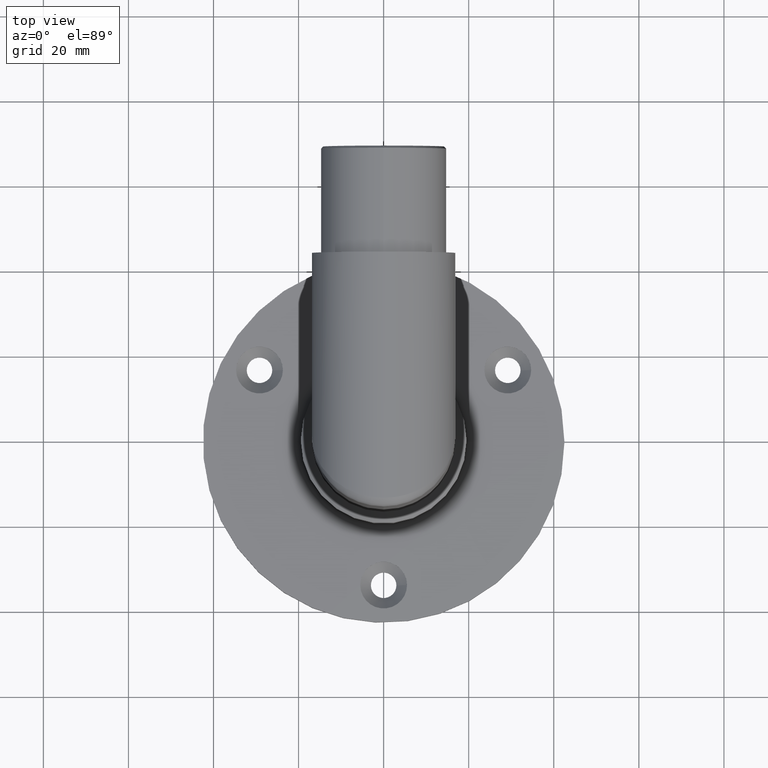
[diagram: clean part render]
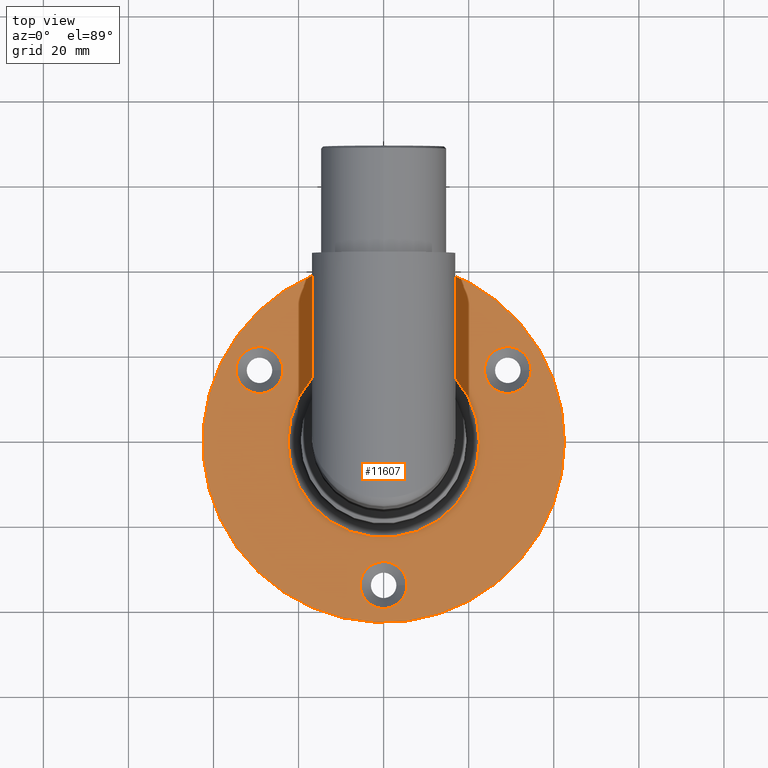
[diagram: same view with one face highlighted and labeled with its STEP entity id]
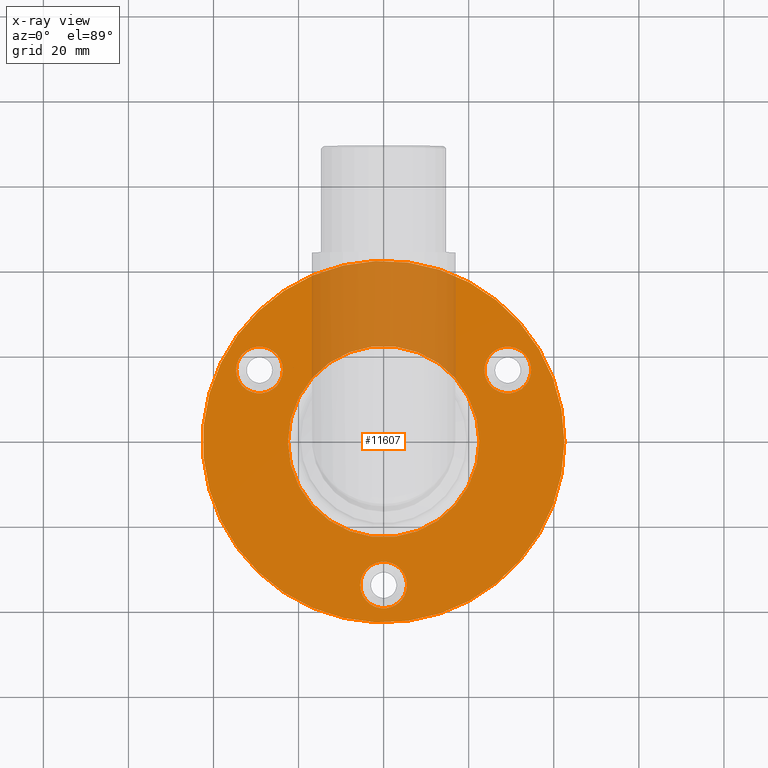
[diagram: x-ray of the same camera — body ghosted, the highlighted face saturated]
A machine part, top view. The second image highlights one B-rep face of the part: STEP entity #11607.
The next image is the same camera in x-ray: the body ghosted, the highlighted face saturated — about 19% of this face is hidden behind the body in this view.
In plain terms, the highlighted planar face has unit normal (0, 0, 1).
Its self-contained STEP definition (entity closure, byte-faithful):
#42 = FACE_BOUND ( 'NONE', #17715, .T. ) ;
#1475 = EDGE_CURVE ( 'NONE', #14014, #14014, #14751, .T. ) ;
#1565 = CARTESIAN_POINT ( 'NONE',  ( 34.68505610753550172, 16.85000000000014353, 5.000000000000001776 ) ) ;
#1696 = CARTESIAN_POINT ( 'NONE',  ( 0.000000000000000000, 0.000000000000000000, 5.000000000000000000 ) ) ;
#1857 = ORIENTED_EDGE ( 'NONE', *, *, #7446, .T. ) ;
#2185 = DIRECTION ( 'NONE',  ( 1.000000000000000000, 0.000000000000000000, 0.000000000000000000 ) ) ;
#2843 = ORIENTED_EDGE ( 'NONE', *, *, #12689, .T. ) ;
#2977 = CARTESIAN_POINT ( 'NONE',  ( -23.68505610753574331, 16.84999999999972786, 5.000000000000001776 ) ) ;
#3235 = CIRCLE ( 'NONE', #15004, 5.499999999999998224 ) ;
#4010 = DIRECTION ( 'NONE',  ( -0.000000000000000000, -0.000000000000000000, 1.000000000000000000 ) ) ;
#4052 = CIRCLE ( 'NONE', #7949, 22.50000000000000000 ) ;
#4229 = CARTESIAN_POINT ( 'NONE',  ( 5.500000000000002665, -33.70000000000000284, 5.000000000000001776 ) ) ;
#4374 = VERTEX_POINT ( 'NONE', #4229 ) ;
#4701 = DIRECTION ( 'NONE',  ( 0.000000000000000000, 0.000000000000000000, 1.000000000000000000 ) ) ;
#5406 = DIRECTION ( 'NONE',  ( 1.000000000000000000, 0.000000000000000000, 0.000000000000000000 ) ) ;
#5559 = EDGE_LOOP ( 'NONE', ( #1857 ) ) ;
#5628 = CARTESIAN_POINT ( 'NONE',  ( 42.50000000000000711, 0.000000000000000000, 5.000000000000000000 ) ) ;
#5692 = DIRECTION ( 'NONE',  ( 1.000000000000000000, 0.000000000000000000, 0.000000000000000000 ) ) ;
#6002 = FACE_OUTER_BOUND ( 'NONE', #9957, .T. ) ;
#6323 = CARTESIAN_POINT ( 'NONE',  ( 0.000000000000000000, 0.000000000000000000, 5.000000000000000000 ) ) ;
#6676 = AXIS2_PLACEMENT_3D ( 'NONE', #10512, #10447, #17140 ) ;
#7008 = DIRECTION ( 'NONE',  ( -0.000000000000000000, -0.000000000000000000, -1.000000000000000000 ) ) ;
#7052 = FACE_BOUND ( 'NONE', #9350, .T. ) ;
#7446 = EDGE_CURVE ( 'NONE', #12319, #12319, #4052, .T. ) ;
#7489 = DIRECTION ( 'NONE',  ( -0.000000000000000000, -0.000000000000000000, 1.000000000000000000 ) ) ;
#7949 = AXIS2_PLACEMENT_3D ( 'NONE', #1696, #7008, #5692 ) ;
#8315 = EDGE_CURVE ( 'NONE', #15750, #15750, #11632, .T. ) ;
#9350 = EDGE_LOOP ( 'NONE', ( #10288 ) ) ;
#9712 = EDGE_CURVE ( 'NONE', #4374, #4374, #3235, .T. ) ;
#9878 = CARTESIAN_POINT ( 'NONE',  ( 22.50000000000000000, 0.000000000000000000, 5.000000000000000000 ) ) ;
#9957 = EDGE_LOOP ( 'NONE', ( #2843 ) ) ;
#10288 = ORIENTED_EDGE ( 'NONE', *, *, #8315, .F. ) ;
#10334 = AXIS2_PLACEMENT_3D ( 'NONE', #10807, #4010, #5406 ) ;
#10447 = DIRECTION ( 'NONE',  ( -0.000000000000000000, -0.000000000000000000, 1.000000000000000000 ) ) ;
#10512 = CARTESIAN_POINT ( 'NONE',  ( 29.18505610753550528, 16.85000000000014353, 5.000000000000001776 ) ) ;
#10807 = CARTESIAN_POINT ( 'NONE',  ( -29.18505610753574331, 16.84999999999972786, 5.000000000000001776 ) ) ;
#11607 = ADVANCED_FACE ( 'NONE', ( #13900, #16478, #7052, #42, #6002 ), #16241, .T. ) ;
#11632 = CIRCLE ( 'NONE', #6676, 5.499999999999994671 ) ;
#12187 = DIRECTION ( 'NONE',  ( 1.000000000000000000, 0.000000000000000000, -0.000000000000000000 ) ) ;
#12319 = VERTEX_POINT ( 'NONE', #9878 ) ;
#12659 = EDGE_LOOP ( 'NONE', ( #15238 ) ) ;
#12689 = EDGE_CURVE ( 'NONE', #13391, #13391, #15840, .T. ) ;
#12802 = DIRECTION ( 'NONE',  ( 1.000000000000000000, 0.000000000000000000, 0.000000000000000000 ) ) ;
#13343 = AXIS2_PLACEMENT_3D ( 'NONE', #13587, #17632, #12187 ) ;
#13391 = VERTEX_POINT ( 'NONE', #5628 ) ;
#13587 = CARTESIAN_POINT ( 'NONE',  ( 0.000000000000000000, 0.000000000000000000, 5.000000000000000000 ) ) ;
#13900 = FACE_BOUND ( 'NONE', #5559, .T. ) ;
#14014 = VERTEX_POINT ( 'NONE', #2977 ) ;
#14117 = CARTESIAN_POINT ( 'NONE',  ( 4.127059713126582066E-15, -33.70000000000000284, 5.000000000000001776 ) ) ;
#14751 = CIRCLE ( 'NONE', #10334, 5.499999999999998224 ) ;
#15004 = AXIS2_PLACEMENT_3D ( 'NONE', #14117, #7489, #12802 ) ;
#15238 = ORIENTED_EDGE ( 'NONE', *, *, #1475, .F. ) ;
#15607 = ORIENTED_EDGE ( 'NONE', *, *, #9712, .F. ) ;
#15750 = VERTEX_POINT ( 'NONE', #1565 ) ;
#15840 = CIRCLE ( 'NONE', #15875, 42.50000000000000711 ) ;
#15875 = AXIS2_PLACEMENT_3D ( 'NONE', #6323, #4701, #2185 ) ;
#16241 = PLANE ( 'NONE',  #13343 ) ;
#16478 = FACE_BOUND ( 'NONE', #12659, .T. ) ;
#17140 = DIRECTION ( 'NONE',  ( 1.000000000000000000, 0.000000000000000000, 0.000000000000000000 ) ) ;
#17632 = DIRECTION ( 'NONE',  ( 0.000000000000000000, 0.000000000000000000, 1.000000000000000000 ) ) ;
#17715 = EDGE_LOOP ( 'NONE', ( #15607 ) ) ;